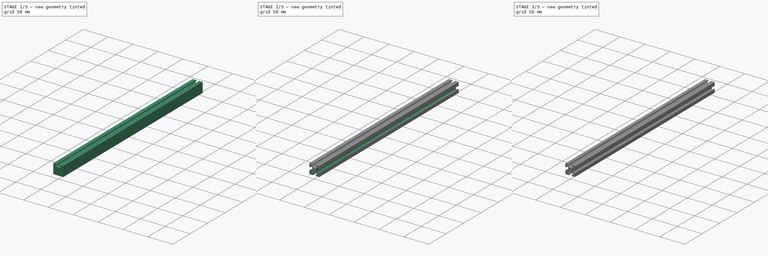
[diagram: build sequence overview — one tinted view per stage of 3, left to right]
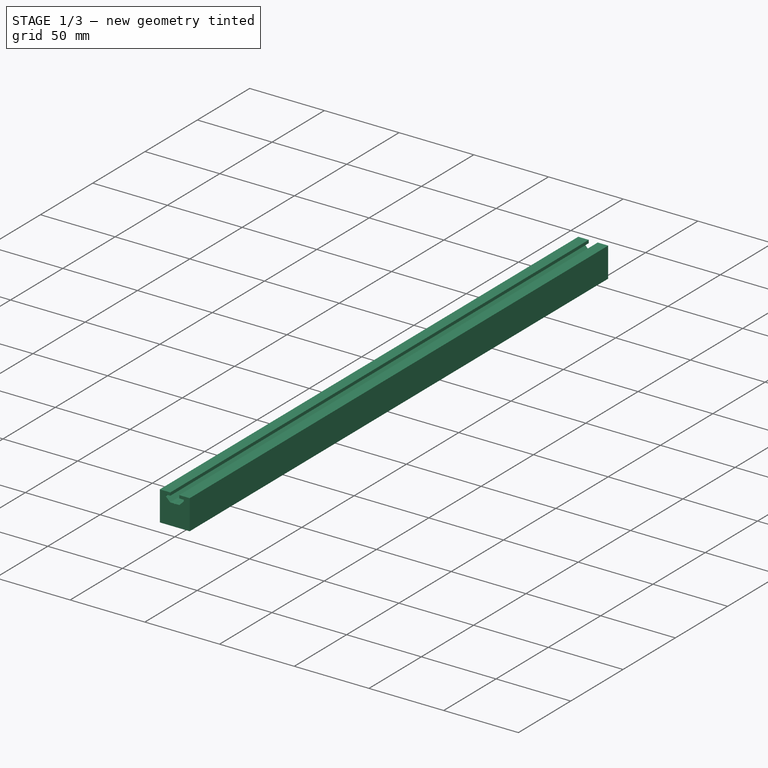
[diagram: stage 1 of 3 — iso view after this stage's code; geometry added in this stage tinted green]
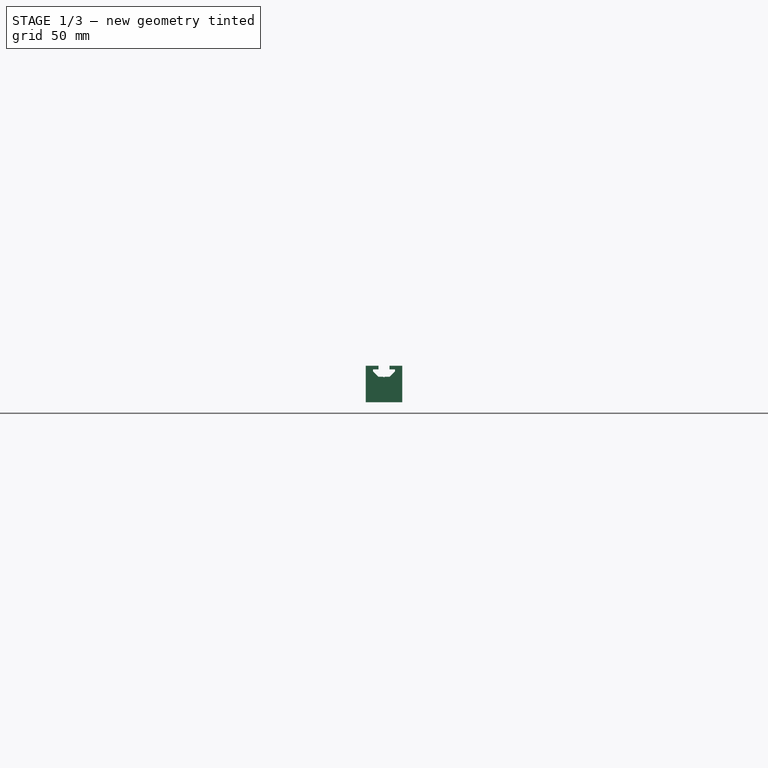
[diagram: stage 1 of 3 — front view after this stage's code; geometry added in this stage tinted green]
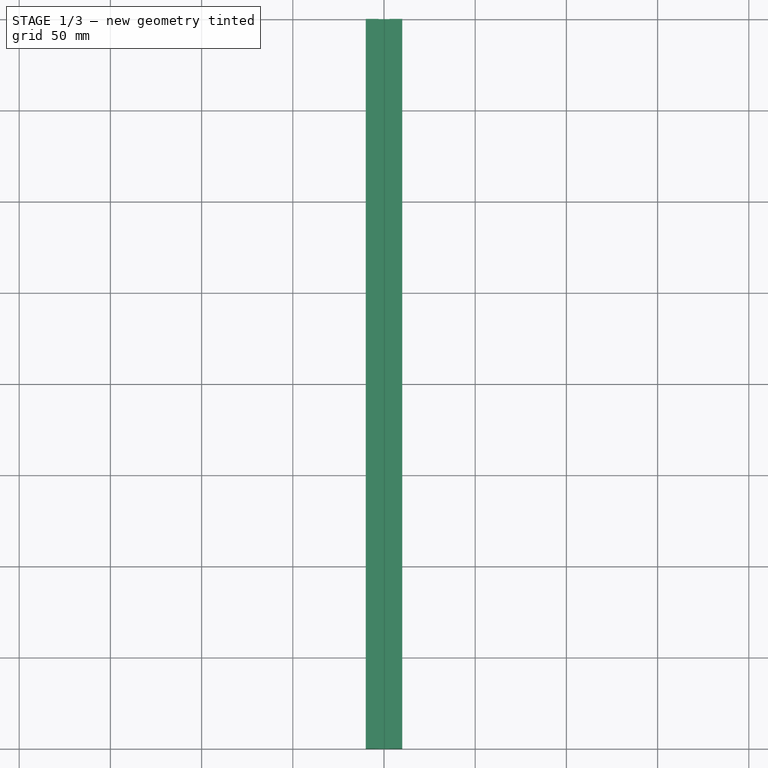
[diagram: stage 1 of 3 — top view after this stage's code; geometry added in this stage tinted green]
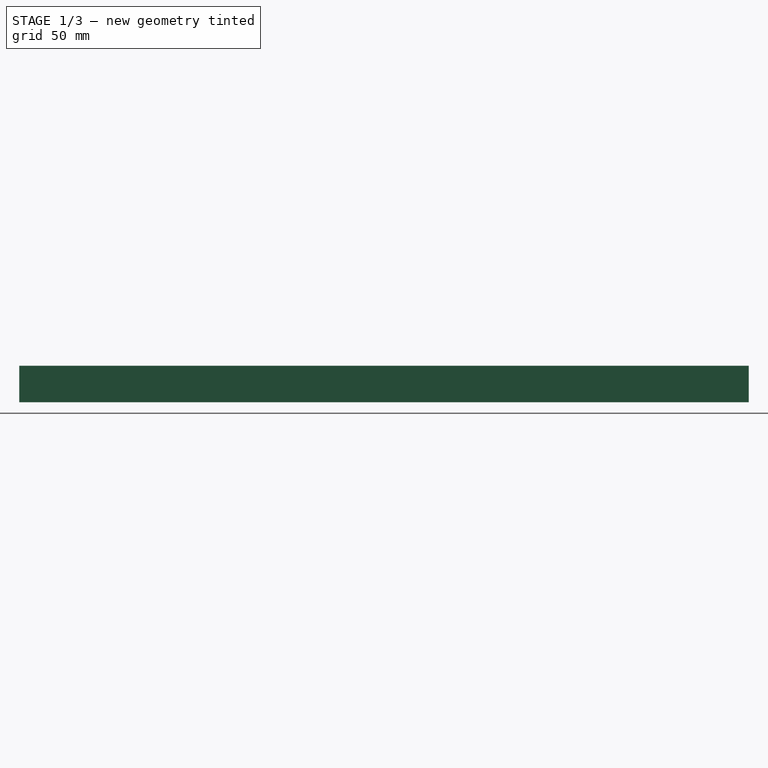
[diagram: stage 1 of 3 — right view after this stage's code; geometry added in this stage tinted green]
FCSTD DOCUMENT  (FreeCAD 0.20R29410 (Git))
Label: x_beam_base
License: All rights reserved
LicenseURL: http://en.wikipedia.org/wiki/All_rights_reserved
objects: Sketcher::SketchObject×3, PartDesign::Pocket×2, Spreadsheet::Sheet×1, PartDesign::Pad×1, PartDesign::PolarPattern×1, PartDesign::Fillet×1, PartDesign::Body×1
note: 13 computed .brp shape members not serialized (recipe doc carries the construction recipe); baked Part::Feature solids carry a one-line shape summary decoded from their .brp

FEATURE [Spreadsheet::Sheet] Spreadsheet  label="Params"
  cells = A1=Width; B1(Width)==20mm; A2=SlotWidth; B2(SlotWidth)==6mm; A3=TSlotWidth; B3(TSlotWidth)==12mm; A4=WallThickness; B4(WallThickness)==2mm; A5=TSlotDepth; B5(TSlotDepth)==6mm; A6=BaseWidth; B6(BaseWidth)==8mm; A7=HoleDiameter; B7(HoleDiameter)==4.2mm; A8=CornerR; B8(CornerR)==1mm; A9=Length; B9(Length)==400mm; A10=DiagonalWallThickness; B10(DiagonalWallThickness)==1.3mm; A11=GrooveDepth; B11(GrooveDepth)==0.3mm; A12=GrooveAngle; B12(GrooveAngle)==120deg
FEATURE [Sketcher::SketchObject] Sketch
  FullyConstrained = true
  MapMode = 5
  Placement = pos=(0,0,0) rot=(1,0,0;1.5708rad)
  Support = -> [XZ_Plane]
  expr: Constraints[10] = <<Params>>.Width
  sketch-geometry (5):
    g0: LineSegment StartX=-10 StartY=-10 StartZ=0 EndX=-10 EndY=10 EndZ=0
    g1: LineSegment StartX=-10 StartY=10 StartZ=0 EndX=10 EndY=10 EndZ=0
    g2: LineSegment StartX=10 StartY=10 StartZ=0 EndX=10 EndY=-10 EndZ=0
    g3: LineSegment StartX=10 StartY=-10 StartZ=0 EndX=-10 EndY=-10 EndZ=0
    g4: GeomPoint X=0 Y=0 Z=0
  constraints (12):
    c: Coincident(g0,g1)
    c: Coincident(g1,g2)
    c: Coincident(g2,g3)
    c: Coincident(g3,g0)
    c: Horizontal(g1)
    c: Horizontal(g3)
    c: Vertical(g0)
    c: Vertical(g2)
    c: Symmetric(g1,g0,g4)
    c: Coincident(g4,g-1)
    c: Distance(g1) = 20
    c: Equal(g1,g0)
FEATURE [PartDesign::Pad] Pad
  Direction = (0,-1,2e-16)
  Length = 400
  Length2 = 10
  Midplane = true
  Placement = pos=(0,0,0) rot=(1,0,0;1.5708rad)
  Profile = -> Sketch
  ReferenceAxis = -> Sketch [N_Axis]
  Type = 0
  expr: Length = <<Params>>.Length
FEATURE [Sketcher::SketchObject] Sketch001
  ExternalGeometry = -> [Pad]
  FullyConstrained = true
  MapMode = 5
  Placement = pos=(0,-200,8.84e-14) rot=(1,0,0;1.5708rad)
  Support = -> [Pad]
  expr: Constraints[13] = <<Params>>.SlotWidth
  expr: Constraints[17] = <<Params>>.BaseWidth / 2
  expr: Constraints[21] = <<Params>>.WallThickness
  expr: Constraints[22] = <<Params>>.TSlotDepth
  expr: Constraints[23] = <<Params>>.TSlotWidth
  expr: Constraints[27] = <<Params>>.DiagonalWallThickness / 2
  expr: Constraints[37] = <<Params>>.GrooveDepth
  expr: Constraints[38] = <<Params>>.GrooveAngle
  sketch-geometry (14):
    g0: LineSegment StartX=-3 StartY=10 StartZ=0 EndX=-3 EndY=8 EndZ=0
    g1: LineSegment StartX=-3 StartY=8 StartZ=0 EndX=-6 EndY=8 EndZ=0
    g2: LineSegment StartX=-6 StartY=8 StartZ=0 EndX=-6 EndY=6.91924 EndZ=0
    g3: LineSegment StartX=-6 StartY=6.91924 StartZ=0 EndX=-3.08076 EndY=4 EndZ=0
    g4: LineSegment StartX=0.519615 StartY=4 StartZ=0 EndX=3.08076 EndY=4 EndZ=0
    g5: LineSegment StartX=3.08076 StartY=4 StartZ=0 EndX=6 EndY=6.91924 EndZ=0
    g6: LineSegment StartX=6 StartY=6.91924 StartZ=0 EndX=6 EndY=8 EndZ=0
    g7: LineSegment StartX=6 StartY=8 StartZ=0 EndX=3 EndY=8 EndZ=0
    g8: LineSegment StartX=3 StartY=8 StartZ=0 EndX=3 EndY=10 EndZ=0
    g9: LineSegment StartX=0 StartY=0 StartZ=0 EndX=-10 EndY=10 EndZ=0
    g10: LineSegment StartX=-3 StartY=10 StartZ=0 EndX=3 EndY=10 EndZ=0
    g11: LineSegment StartX=0.519615 StartY=4 StartZ=0 EndX=0 EndY=3.7 EndZ=0
    g12: LineSegment StartX=0 StartY=3.7 StartZ=0 EndX=-0.519615 EndY=4 EndZ=0
    g13: LineSegment StartX=-0.519615 StartY=4 StartZ=0 EndX=-3.08076 EndY=4 EndZ=0
  constraints (39):
    c: Vertical(g0)
    c: Coincident(g1,g0)
    c: Horizontal(g1)
    c: Coincident(g2,g1)
    c: Vertical(g2)
    c: Coincident(g5,g4)
    c: Coincident(g6,g5)
    c: Vertical(g6)
    c: Coincident(g7,g6)
    c: Horizontal(g7)
    c: Vertical(g8)
    c: PointOnObject(g8,g-3)
    c: PointOnObject(g0,g-3)
    c: Distance(g0,g8) = 6
    c: Coincident(g7,g8)
    c: Equal(g1,g7)
    c: Coincident(g2,g3)
    c: Distance(g-1,g4) = 4
    c: Angle(g-2,g3) = 0.785398
    c: Equal(g2,g6)
    c: Equal(g5,g3)
    c: DistanceY(g8,g8) = 2
    c: Distance(g4,g-3) = 6
    c: DistanceX(g1,g6) = 12
    c: Symmetric(g0,g7,g-2)
    c: Coincident(g9,g-1)
    c: Coincident(g9,g-3)
    c: Distance(g2,g9) = 0.65
    c: Coincident(g10,g0)
    c: Coincident(g10,g8)
    c: Coincident(g11,g4)
    c: Coincident(g12,g11)
    c: Coincident(g13,g12)
    c: Coincident(g13,g3)
    c: Symmetric(g12,g4,g-2)
    c: Horizontal(g13)
    c: PointOnObject(g11,g-2)
    c: DistanceY(g11,g4) = 0.3
    c: Angle(g11,g12) = 2.0944
FEATURE [PartDesign::Pocket] Pocket
  BaseFeature = -> Pad
  Direction = (0,1,-2e-16)
  Length = 5
  Length2 = 5
  Placement = pos=(0,0,0) rot=(1,0,0;1.5708rad)
  Profile = -> Sketch001
  ReferenceAxis = -> Sketch001 [N_Axis]
  Type = 1
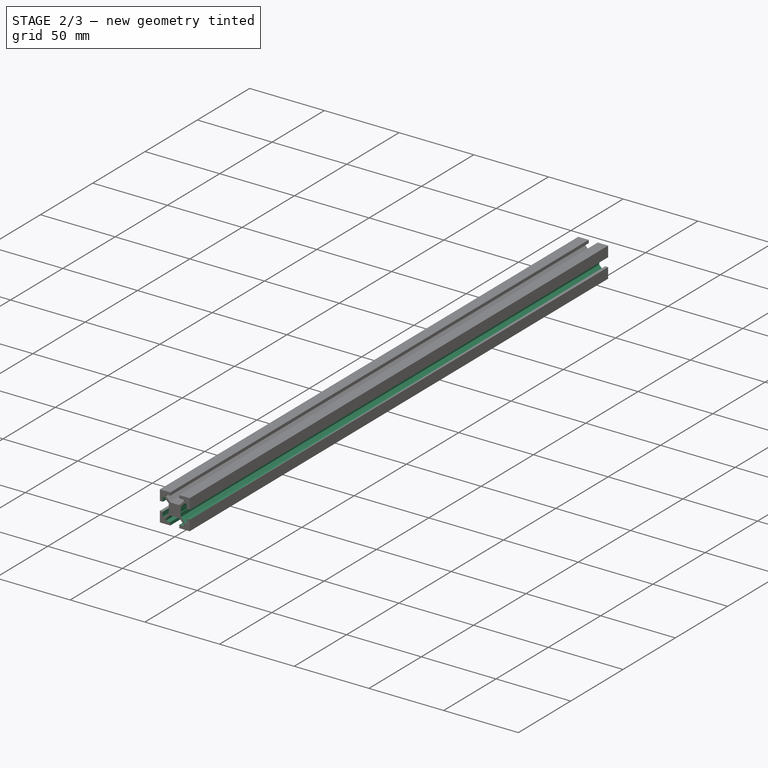
[diagram: stage 2 of 3 — iso view after this stage's code; geometry added in this stage tinted green]
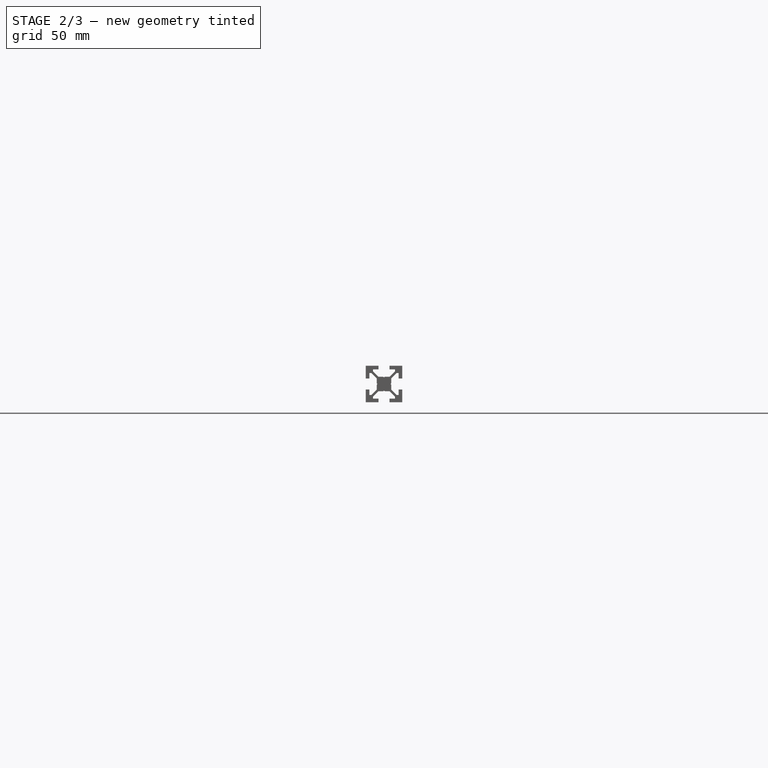
[diagram: stage 2 of 3 — front view after this stage's code; geometry added in this stage tinted green]
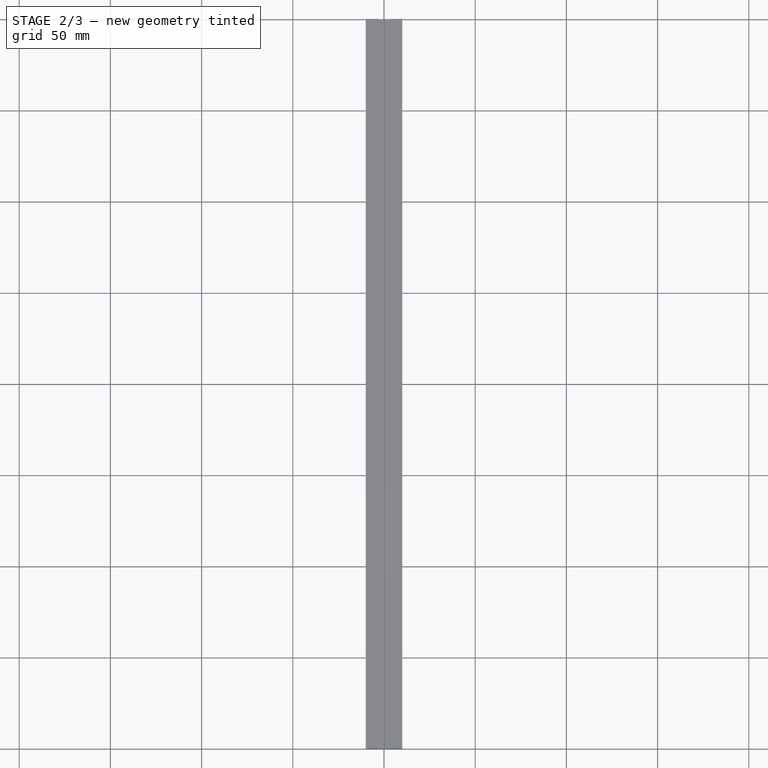
[diagram: stage 2 of 3 — top view after this stage's code; geometry added in this stage tinted green]
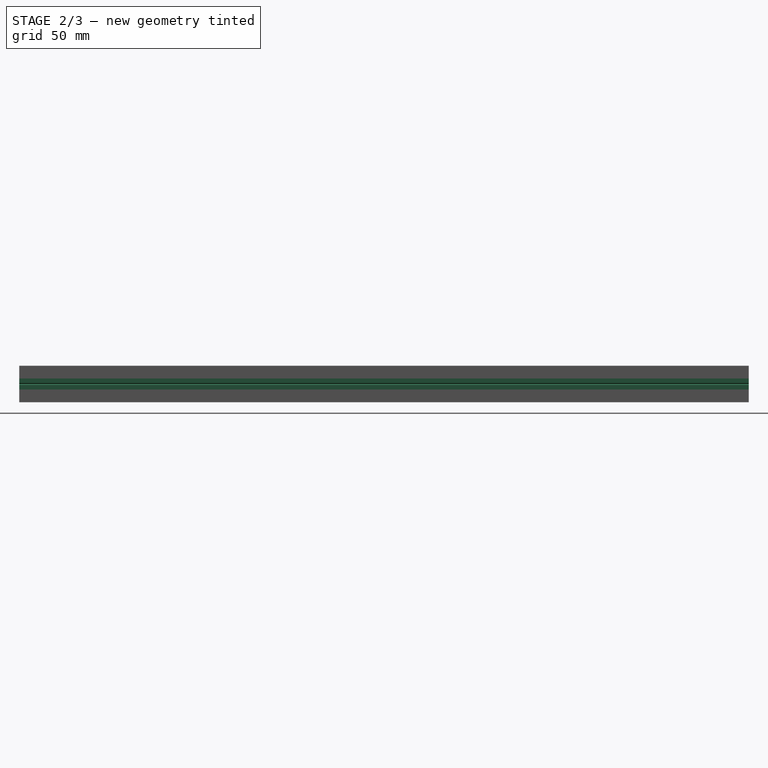
[diagram: stage 2 of 3 — right view after this stage's code; geometry added in this stage tinted green]
FEATURE [PartDesign::PolarPattern] PolarPattern
  Angle = 360
  Axis = -> Sketch001 [N_Axis]
  BaseFeature = -> Pocket
  Occurrences = 4
  Originals = -> [Pocket]
  Placement = pos=(0,0,0) rot=(1,0,0;1.5708rad)
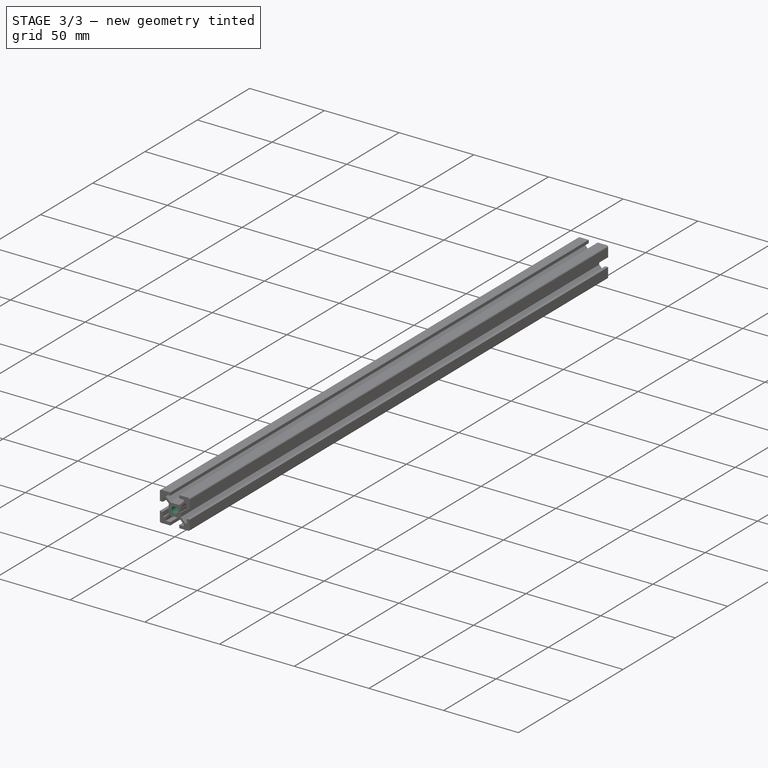
[diagram: stage 3 of 3 — iso view after this stage's code; geometry added in this stage tinted green]
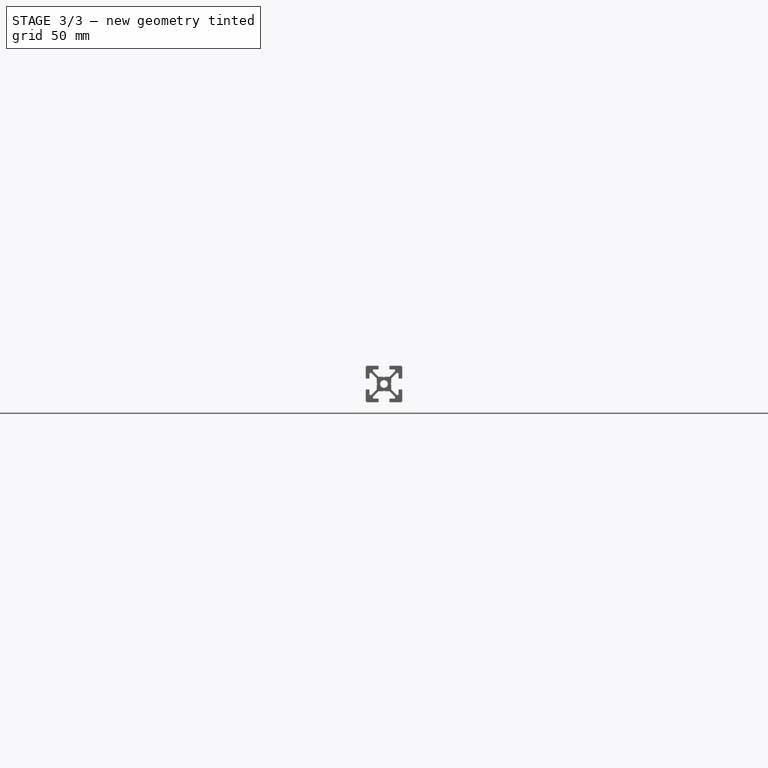
[diagram: stage 3 of 3 — front view after this stage's code; geometry added in this stage tinted green]
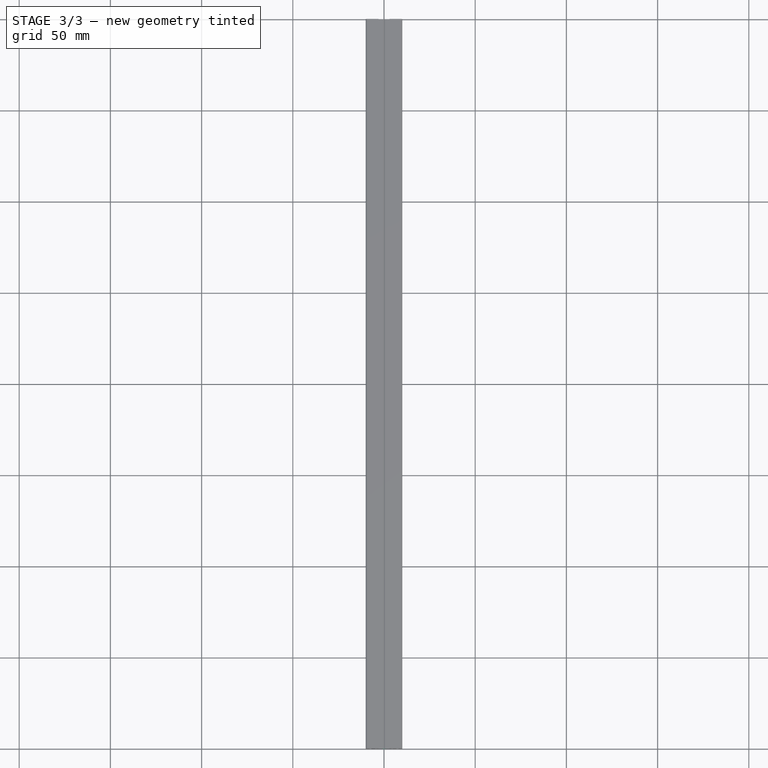
[diagram: stage 3 of 3 — top view after this stage's code; geometry added in this stage tinted green]
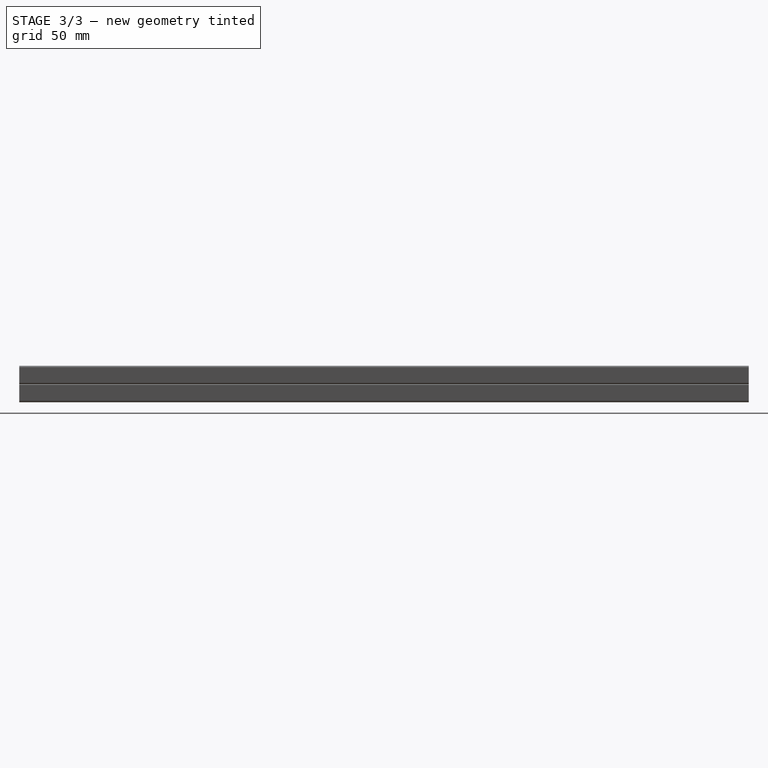
[diagram: stage 3 of 3 — right view after this stage's code; geometry added in this stage tinted green]
FEATURE [Sketcher::SketchObject] Sketch002
  FullyConstrained = true
  MapMode = 5
  Placement = pos=(0,-200,8.84e-14) rot=(1,0,0;1.5708rad)
  Support = -> [PolarPattern]
  expr: Constraints[1] = <<Params>>.HoleDiameter
  sketch-geometry (1):
    g0: Circle CenterX=0 CenterY=0 CenterZ=0 NormalX=0 NormalY=0 NormalZ=1 AngleXU=0 Radius=2.1
  constraints (2):
    c: Coincident(g0,g-1)
    c: Diameter(g0) = 4.2
FEATURE [PartDesign::Pocket] Pocket001
  BaseFeature = -> PolarPattern
  Direction = (0,1,-2e-16)
  Length = 5
  Length2 = 5
  Placement = pos=(0,0,0) rot=(1,0,0;1.5708rad)
  Profile = -> Sketch002
  ReferenceAxis = -> Sketch002 [N_Axis]
  Type = 1
FEATURE [PartDesign::Fillet] Fillet
  Base = -> Pocket001 [Edge169,Edge145,Edge119,Edge4]
  BaseFeature = -> Pocket001
  Placement = pos=(0,0,0) rot=(1,0,0;1.5708rad)
  Radius = 1
  SupportTransform = false
  UseAllEdges = false
  expr: Radius = <<Params>>.CornerR
FEATURE [PartDesign::Body] Body
  Group = -> [Sketch,Pad,Sketch001,Pocket,PolarPattern,Sketch002,Pocket001,Fillet]
  Origin = -> Origin
  Tip = -> Fillet
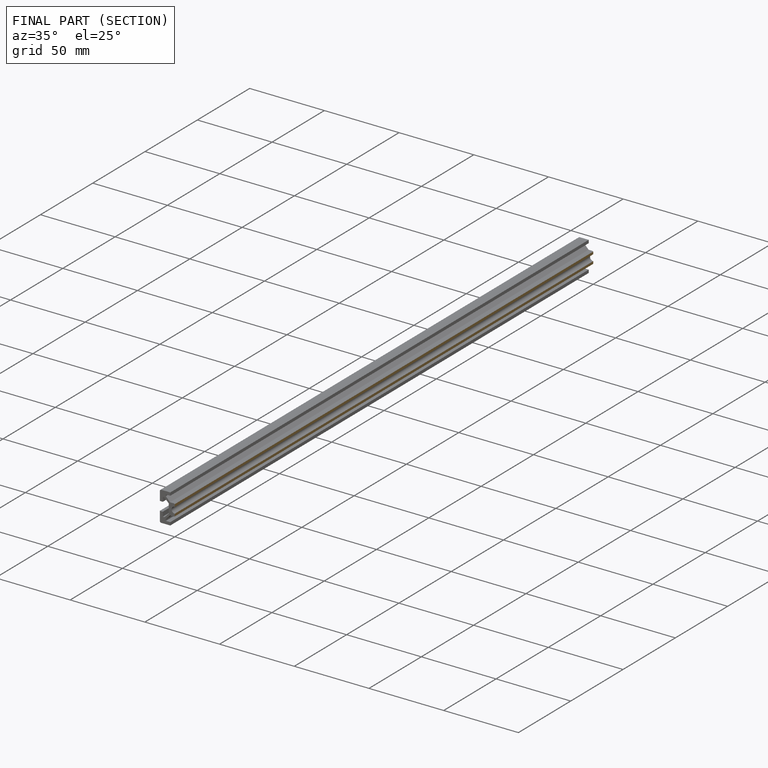
[diagram: finished part — half-section view (interior)]
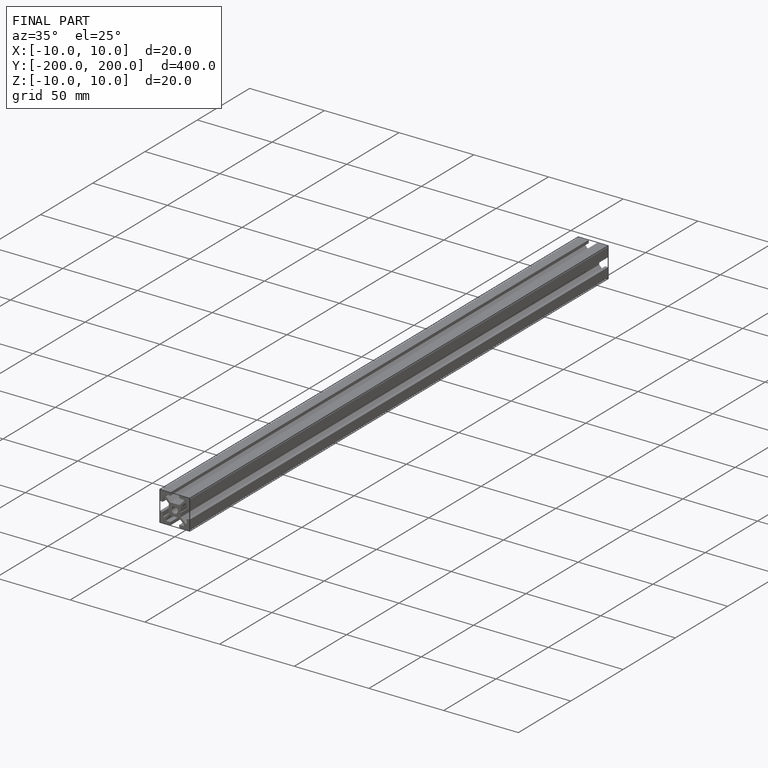
[diagram: finished part — iso view with bounding-box wireframe]
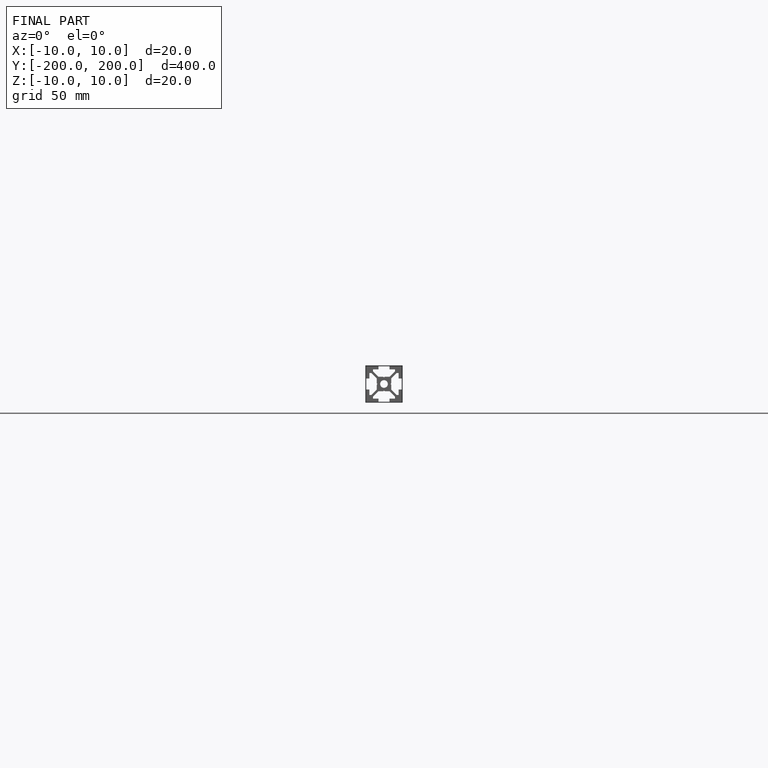
[diagram: finished part — front view with bounding-box wireframe]
